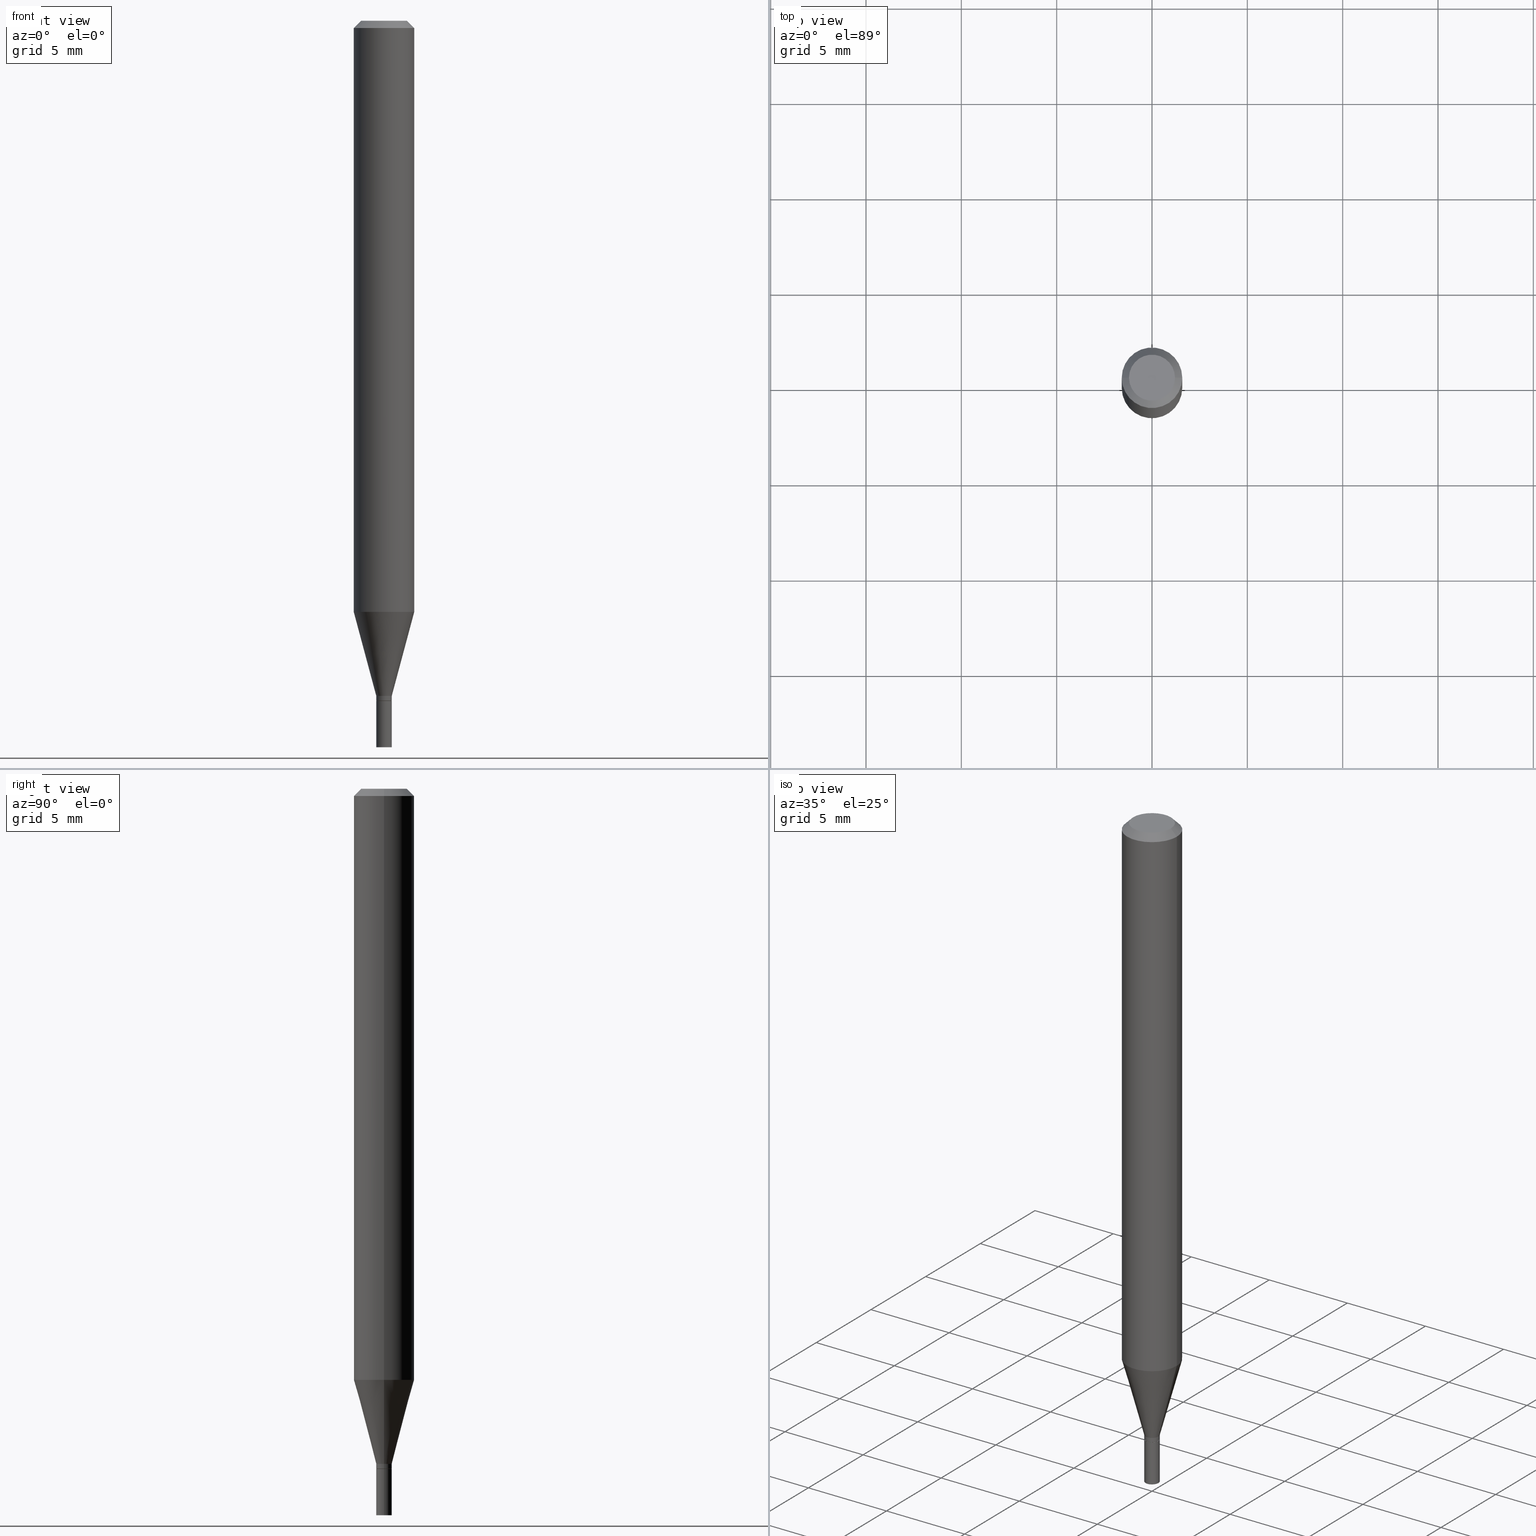
[diagram: canonical four-view strip — front | top / right | iso, engineering-drawing reading convention]
A machine part, canonical four-view strip (front | top / right | iso — engineering-drawing reading convention). The complete STEP part file that produces these views, byte-faithful:
ISO-10303-21;
HEADER;
FILE_DESCRIPTION (( 'STEP AP203' ),
    '1' );
FILE_NAME ('02302.STEP',
    '2024-03-18T20:03:32',
    ( '' ),
    ( '' ),
    'SwSTEP 2.0',
    'SolidWorks 2023',
    '' );
FILE_SCHEMA (( 'CONFIG_CONTROL_DESIGN' ));
ENDSEC;

DATA;
#1 = DIRECTION ( 'NONE',  ( 1.000000000000000000, -6.982962677686244622E-15, 0.000000000000000000 ) ) ;
#2 = CARTESIAN_POINT ( 'NONE',  ( 3.408983515822080869E-29, -4.867124986347346010E-15, -1.394000000000000128 ) ) ;
#3 = CARTESIAN_POINT ( 'NONE',  ( 0.04749999999999999362, -4.035134999187579116E-16, -3.319333953586984624E-17 ) ) ;
#4 = VECTOR ( 'NONE', #246, 39.37007874015748143 ) ;
#5 =( CONVERSION_BASED_UNIT ( 'INCH', #266 ) LENGTH_UNIT ( ) NAMED_UNIT ( #39 ) );
#6 = CARTESIAN_POINT ( 'NONE',  ( -0.01599999999999992401, -4.753438148625730668E-15, -1.394000000000000128 ) ) ;
#7 = ORIENTED_EDGE ( 'NONE', *, *, #208, .T. ) ;
#8 = DIRECTION ( 'NONE',  ( 0.000000000000000000, 0.000000000000000000, 1.000000000000000000 ) ) ;
#9 = CLOSED_SHELL ( 'NONE', ( #113, #121, #93, #413, #345, #426, #212, #209, #13, #332, #146, #288 ) ) ;
#10 = DIRECTION ( 'NONE',  ( 0.2588190451025213501, 1.565188264969621968E-15, 0.9659258262890682012 ) ) ;
#11 = SECURITY_CLASSIFICATION ( '', '', #446 ) ;
#12 = EDGE_LOOP ( 'NONE', ( #232, #431, #231, #374 ) ) ;
#13 = ADVANCED_FACE ( 'NONE', ( #157 ), #260, .F. ) ;
#14 = APPROVAL_STATUS ( 'not_yet_approved' ) ;
#15 = CARTESIAN_POINT ( 'NONE',  ( -0.01599999999999992401, -4.285280493868398751E-15, -1.394000000000000128 ) ) ;
#16 = EDGE_CURVE ( 'NONE', #55, #337, #400, .T. ) ;
#17 = ORIENTED_EDGE ( 'NONE', *, *, #125, .T. ) ;
#18 = APPROVAL_ROLE ( '' ) ;
#19 = FACE_OUTER_BOUND ( 'NONE', #313, .T. ) ;
#20 = ORIENTED_EDGE ( 'NONE', *, *, #326, .T. ) ;
#21 = CARTESIAN_POINT ( 'NONE',  ( 0.000000000000000000, 0.000000000000000000, 0.000000000000000000 ) ) ;
#22 = ORIENTED_EDGE ( 'NONE', *, *, #438, .F. ) ;
#23 = DIRECTION ( 'NONE',  ( -2.445468806185136597E-29, 3.491481338843145583E-15, 1.000000000000000000 ) ) ;
#24 = FACE_OUTER_BOUND ( 'NONE', #28, .T. ) ;
#25 = SHAPE_DEFINITION_REPRESENTATION ( #188, #46 ) ;
#26 = CARTESIAN_POINT ( 'NONE',  ( 3.668203209277705088E-31, -5.237222008264718399E-17, -0.01499999999999999944 ) ) ;
#27 = VECTOR ( 'NONE', #285, 39.37007874015748143 ) ;
#28 = EDGE_LOOP ( 'NONE', ( #456, #31, #394, #386 ) ) ;
#29 = DIRECTION ( 'NONE',  ( 1.000000000000000000, -6.982962677686266711E-15, 4.876176775795935793E-29 ) ) ;
#30 = CC_DESIGN_PERSON_AND_ORGANIZATION_ASSIGNMENT ( #229, #327, ( #365 ) ) ;
#31 = ORIENTED_EDGE ( 'NONE', *, *, #461, .T. ) ;
#32 = CARTESIAN_POINT ( 'NONE',  ( 0.01600000000000000033, -5.348949411107699138E-15, -1.500000000000000222 ) ) ;
#33 = DIRECTION ( 'NONE',  ( -2.445468806185136877E-29, 3.491481338843145188E-15, 1.000000000000000000 ) ) ;
#34 = AXIS2_PLACEMENT_3D ( 'NONE', #135, #312, #238 ) ;
#35 = ORIENTED_EDGE ( 'NONE', *, *, #458, .T. ) ;
#36 = PRODUCT ( '02302', '02302', '', ( #150 ) ) ;
#37 = CC_DESIGN_PERSON_AND_ORGANIZATION_ASSIGNMENT ( #440, #111, ( #36 ) ) ;
#38 = DIRECTION ( 'NONE',  ( -2.445468806185136597E-29, 3.491481338843145583E-15, 1.000000000000000000 ) ) ;
#39 = DIMENSIONAL_EXPONENTS ( 1.000000000000000000, 0.000000000000000000, 0.000000000000000000, 0.000000000000000000, 0.000000000000000000, 0.000000000000000000, 0.000000000000000000 ) ;
#40 = DIRECTION ( 'NONE',  ( -2.445468806185136597E-29, 3.491481338843145583E-15, 1.000000000000000000 ) ) ;
#41 = DIRECTION ( 'NONE',  ( 0.7071067811865642261, -2.468850131082431399E-15, 0.7071067811865309194 ) ) ;
#42 = CONICAL_SURFACE ( 'NONE', #228, 0.01599999999999992401, 0.2617993877991500740 ) ;
#43 = EDGE_CURVE ( 'NONE', #128, #331, #152, .T. ) ;
#44 = COORDINATED_UNIVERSAL_TIME_OFFSET ( 5, 0, .BEHIND. ) ;
#45 = CARTESIAN_POINT ( 'NONE',  ( 0.000000000000000000, 0.000000000000000000, 0.000000000000000000 ) ) ;
#46 = ADVANCED_BREP_SHAPE_REPRESENTATION ( '02302', ( #439, #435, #192 ), #341 ) ;
#47 = COORDINATED_UNIVERSAL_TIME_OFFSET ( 5, 0, .BEHIND. ) ;
#48 = CARTESIAN_POINT ( 'NONE',  ( 3.433438203883931854E-29, -4.902039799735776870E-15, -1.404000000000000137 ) ) ;
#49 = PERSON_AND_ORGANIZATION ( #317, #242 ) ;
#50 = CIRCLE ( 'NONE', #373, 0.01599999999999992401 ) ;
#51 = DIRECTION ( 'NONE',  ( 1.000000000000000000, -6.982962677686267499E-15, 4.876681293081646444E-29 ) ) ;
#52 = APPLICATION_PROTOCOL_DEFINITION ( 'international standard', 'config_control_design', 1994, #138 ) ;
#53 = DIRECTION ( 'NONE',  ( 1.000000000000000000, -6.982962677686265922E-15, 4.876176775795935793E-29 ) ) ;
#54 = ORIENTED_EDGE ( 'NONE', *, *, #179, .F. ) ;
#55 = VERTEX_POINT ( 'NONE', #199 ) ;
#56 = CARTESIAN_POINT ( 'NONE',  ( 3.668203209277705088E-31, -5.237222008264718399E-17, -0.01499999999999999944 ) ) ;
#57 = VECTOR ( 'NONE', #41, 39.37007874015748143 ) ;
#58 = DIRECTION ( 'NONE',  ( 1.000000000000000000, -6.982962677686266711E-15, 0.000000000000000000 ) ) ;
#59 = DIRECTION ( 'NONE',  ( -2.445468806185136597E-29, 3.491481338843145583E-15, 1.000000000000000000 ) ) ;
#60 = ORIENTED_EDGE ( 'NONE', *, *, #277, .T. ) ;
#61 = CARTESIAN_POINT ( 'NONE',  ( 8.117327640808780352E-46, -1.158939255633829398E-31, -3.319333953587241620E-17 ) ) ;
#62 = EDGE_CURVE ( 'NONE', #109, #240, #196, .T. ) ;
#63 = AXIS2_PLACEMENT_3D ( 'NONE', #116, #230, #291 ) ;
#64 = VECTOR ( 'NONE', #100, 39.37007874015748143 ) ;
#65 = APPROVAL_PERSON_ORGANIZATION ( #117, #174, #261 ) ;
#66 = DIRECTION ( 'NONE',  ( 1.000000000000000000, -6.982962677686237523E-15, 0.000000000000000000 ) ) ;
#67 = VERTEX_POINT ( 'NONE', #406 ) ;
#68 = FACE_OUTER_BOUND ( 'NONE', #384, .T. ) ;
#69 = ORIENTED_EDGE ( 'NONE', *, *, #134, .T. ) ;
#70 = CARTESIAN_POINT ( 'NONE',  ( 3.432215469480839613E-29, -4.900294059066355366E-15, -1.403500000000000192 ) ) ;
#71 = AXIS2_PLACEMENT_3D ( 'NONE', #149, #38, #357 ) ;
#72 = DIRECTION ( 'NONE',  ( -2.445468806185136597E-29, 3.491481338843145583E-15, 1.000000000000000000 ) ) ;
#73 = CARTESIAN_POINT ( 'NONE',  ( 0.06250000000000000000, -4.364351673553916694E-16, 3.047610484872459871E-30 ) ) ;
#74 = DATE_TIME_ROLE ( 'creation_date' ) ;
#75 = AXIS2_PLACEMENT_3D ( 'NONE', #190, #262, #51 ) ;
#76 = APPROVAL_ROLE ( '' ) ;
#77 = DIRECTION ( 'NONE',  ( -2.445468806185136597E-29, 3.491481338843145583E-15, 1.000000000000000000 ) ) ;
#78 =( NAMED_UNIT ( * ) SI_UNIT ( $, .STERADIAN. ) SOLID_ANGLE_UNIT ( ) );
#79 = EDGE_CURVE ( 'NONE', #198, #424, #200, .T. ) ;
#80 = CARTESIAN_POINT ( 'NONE',  ( -0.06250000000000000000, -1.712702924671825451E-15, -0.01499999999999999944 ) ) ;
#81 = CC_DESIGN_PERSON_AND_ORGANIZATION_ASSIGNMENT ( #115, #259, ( #11 ) ) ;
#82 = DATE_AND_TIME ( #371, #217 ) ;
#83 = DIRECTION ( 'NONE',  ( -2.445468806185136597E-29, 3.491481338843145583E-15, 1.000000000000000000 ) ) ;
#84 = VECTOR ( 'NONE', #390, 39.37007874015748143 ) ;
#85 = EDGE_LOOP ( 'NONE', ( #298, #108, #416, #22 ) ) ;
#86 = CARTESIAN_POINT ( 'NONE',  ( 3.668203209277704895E-29, -5.237222008264718177E-15, -1.500000000000000222 ) ) ;
#87 = EDGE_CURVE ( 'NONE', #55, #96, #223, .T. ) ;
#88 = APPLICATION_CONTEXT ( 'configuration controlled 3d designs of mechanical parts and assemblies' ) ;
#89 = FACE_OUTER_BOUND ( 'NONE', #85, .T. ) ;
#90 = FACE_OUTER_BOUND ( 'NONE', #401, .T. ) ;
#91 = ORIENTED_EDGE ( 'NONE', *, *, #460, .F. ) ;
#92 = CARTESIAN_POINT ( 'NONE',  ( 0.01599999999999992401, -5.012021461909334750E-15, -1.403500000000000192 ) ) ;
#93 = ADVANCED_FACE ( 'NONE', ( #155 ), #141, .T. ) ;
#94 = ORIENTED_EDGE ( 'NONE', *, *, #79, .T. ) ;
#95 = CARTESIAN_POINT ( 'NONE',  ( 1.117274028430145868E-16, 0.01599999999999509800, -1.404000000000000137 ) ) ;
#96 = VERTEX_POINT ( 'NONE', #80 ) ;
#97 = PLANE ( 'NONE',  #98 ) ;
#98 = AXIS2_PLACEMENT_3D ( 'NONE', #352, #273, #203 ) ;
#99 = ORIENTED_EDGE ( 'NONE', *, *, #378, .T. ) ;
#100 = DIRECTION ( 'NONE',  ( -2.445468806185136877E-29, 3.491481338843145188E-15, 1.000000000000000000 ) ) ;
#101 = ORIENTED_EDGE ( 'NONE', *, *, #216, .T. ) ;
#102 = LINE ( 'NONE', #73, #4 ) ;
#103 = CIRCLE ( 'NONE', #295, 0.06250000000000000000 ) ;
#104 = CC_DESIGN_SECURITY_CLASSIFICATION ( #11, ( #365 ) ) ;
#105 = EDGE_CURVE ( 'NONE', #424, #198, #340, .T. ) ;
#106 = CARTESIAN_POINT ( 'NONE',  ( 3.433438203883931854E-29, -4.902039799735776870E-15, -1.404000000000000137 ) ) ;
#107 = CARTESIAN_POINT ( 'NONE',  ( 0.000000000000000000, 0.000000000000000000, 0.000000000000000000 ) ) ;
#108 = ORIENTED_EDGE ( 'NONE', *, *, #430, .T. ) ;
#109 = VERTEX_POINT ( 'NONE', #15 ) ;
#110 = AXIS2_PLACEMENT_3D ( 'NONE', #137, #23, #417 ) ;
#111 = PERSON_AND_ORGANIZATION_ROLE ( 'design_owner' ) ;
#112 = ORIENTED_EDGE ( 'NONE', *, *, #383, .F. ) ;
#113 = ADVANCED_FACE ( 'NONE', ( #377 ), #372, .T. ) ;
#114 = VERTEX_POINT ( 'NONE', #403 ) ;
#115 = PERSON_AND_ORGANIZATION ( #317, #242 ) ;
#116 = CARTESIAN_POINT ( 'NONE',  ( 3.668203209277705088E-31, -5.237222008264718399E-17, -0.01499999999999999944 ) ) ;
#117 = PERSON_AND_ORGANIZATION ( #317, #242 ) ;
#118 = ORIENTED_EDGE ( 'NONE', *, *, #356, .F. ) ;
#119 = DATE_AND_TIME ( #399, #183 ) ;
#120 = CIRCLE ( 'NONE', #455, 0.06250000000000000000 ) ;
#121 = ADVANCED_FACE ( 'NONE', ( #303 ), #441, .T. ) ;
#122 = AXIS2_PLACEMENT_3D ( 'NONE', #106, #355, #281 ) ;
#123 = LINE ( 'NONE', #338, #271 ) ;
#124 = CIRCLE ( 'NONE', #324, 0.01599999999999992401 ) ;
#125 = EDGE_CURVE ( 'NONE', #205, #293, #123, .T. ) ;
#126 = ORIENTED_EDGE ( 'NONE', *, *, #308, .T. ) ;
#127 = DIRECTION ( 'NONE',  ( 1.000000000000000000, -6.982962677686244622E-15, 0.000000000000000000 ) ) ;
#128 = VERTEX_POINT ( 'NONE', #410 ) ;
#129 = CARTESIAN_POINT ( 'NONE',  ( 3.408983515822080869E-29, -4.867124986347346010E-15, -1.394000000000000128 ) ) ;
#130 = DESIGN_CONTEXT ( 'detailed design', #88, 'design' ) ;
#131 = CYLINDRICAL_SURFACE ( 'NONE', #110, 0.06250000000000000000 ) ;
#132 = CONICAL_SURFACE ( 'NONE', #264, 0.01550000000000000162, 0.7853981633974718157 ) ;
#133 = CIRCLE ( 'NONE', #287, 0.06250000000000000000 ) ;
#134 = EDGE_CURVE ( 'NONE', #205, #114, #234, .T. ) ;
#135 = CARTESIAN_POINT ( 'NONE',  ( 3.668203209277705088E-31, -5.237222008264718399E-17, -0.01499999999999999944 ) ) ;
#136 = ORIENTED_EDGE ( 'NONE', *, *, #461, .F. ) ;
#137 = CARTESIAN_POINT ( 'NONE',  ( 0.000000000000000000, 0.000000000000000000, 0.000000000000000000 ) ) ;
#138 = APPLICATION_CONTEXT ( 'configuration controlled 3d designs of mechanical parts and assemblies' ) ;
#139 = ORIENTED_EDGE ( 'NONE', *, *, #43, .T. ) ;
#140 = DIRECTION ( 'NONE',  ( 1.000000000000000000, -6.982962677686271444E-15, 0.000000000000000000 ) ) ;
#141 = CONICAL_SURFACE ( 'NONE', #63, 0.06250000000000000000, 0.7853981633974495002 ) ;
#142 = CIRCLE ( 'NONE', #148, 0.01600000000000000033 ) ;
#143 = ORIENTED_EDGE ( 'NONE', *, *, #134, .F. ) ;
#144 = FACE_OUTER_BOUND ( 'NONE', #404, .T. ) ;
#145 = CYLINDRICAL_SURFACE ( 'NONE', #167, 0.06250000000000000000 ) ;
#146 = ADVANCED_FACE ( 'NONE', ( #19 ), #132, .T. ) ;
#147 = LINE ( 'NONE', #397, #27 ) ;
#148 = AXIS2_PLACEMENT_3D ( 'NONE', #314, #322, #140 ) ;
#149 = CARTESIAN_POINT ( 'NONE',  ( 3.408983515822080869E-29, -4.867124986347346010E-15, -1.394000000000000128 ) ) ;
#150 = MECHANICAL_CONTEXT ( 'NONE', #138, 'mechanical' ) ;
#151 = ORIENTED_EDGE ( 'NONE', *, *, #43, .F. ) ;
#152 = LINE ( 'NONE', #449, #191 ) ;
#153 = DIRECTION ( 'NONE',  ( 1.000000000000000000, -6.982962677686271444E-15, 0.000000000000000000 ) ) ;
#154 = APPLICATION_PROTOCOL_DEFINITION ( 'international standard', 'config_control_design', 1994, #88 ) ;
#155 = FACE_OUTER_BOUND ( 'NONE', #333, .T. ) ;
#156 = CALENDAR_DATE ( 2024, 18, 3 ) ;
#157 = FACE_OUTER_BOUND ( 'NONE', #354, .T. ) ;
#158 = ADVANCED_FACE ( 'NONE', ( #241 ), #306, .F. ) ;
#159 = AXIS2_PLACEMENT_3D ( 'NONE', #21, #387, #29 ) ;
#160 = FACE_OUTER_BOUND ( 'NONE', #429, .T. ) ;
#161 = ORIENTED_EDGE ( 'NONE', *, *, #321, .T. ) ;
#162 = CYLINDRICAL_SURFACE ( 'NONE', #159, 0.01600000000000000033 ) ;
#163 = CYLINDRICAL_SURFACE ( 'NONE', #265, 0.01599999999999992401 ) ;
#164 = CC_DESIGN_PERSON_AND_ORGANIZATION_ASSIGNMENT ( #369, #364, ( #247 ) ) ;
#165 = ORIENTED_EDGE ( 'NONE', *, *, #179, .T. ) ;
#166 = DIRECTION ( 'NONE',  ( -2.445468806185136597E-29, 3.491481338843145583E-15, 1.000000000000000000 ) ) ;
#167 = AXIS2_PLACEMENT_3D ( 'NONE', #284, #72, #362 ) ;
#168 = VERTEX_POINT ( 'NONE', #339 ) ;
#169 = DIRECTION ( 'NONE',  ( 2.438088387897960049E-29, -3.491481338843145188E-15, -1.000000000000000000 ) ) ;
#170 = EDGE_CURVE ( 'NONE', #240, #96, #459, .T. ) ;
#171 = ORIENTED_EDGE ( 'NONE', *, *, #422, .T. ) ;
#172 = LINE ( 'NONE', #213, #388 ) ;
#173 = EDGE_CURVE ( 'NONE', #128, #109, #50, .T. ) ;
#174 = APPROVAL ( #195, 'UNSPECIFIED' ) ;
#175 = VERTEX_POINT ( 'NONE', #275 ) ;
#176 = LINE ( 'NONE', #466, #57 ) ;
#177 = AXIS2_PLACEMENT_3D ( 'NONE', #344, #269, #411 ) ;
#178 = DIRECTION ( 'NONE',  ( 1.000000000000000000, -6.982962677686262766E-15, 0.000000000000000000 ) ) ;
#179 = EDGE_CURVE ( 'NONE', #337, #55, #350, .T. ) ;
#180 = LINE ( 'NONE', #363, #282 ) ;
#181 = APPROVAL ( #402, 'UNSPECIFIED' ) ;
#182 = FACE_OUTER_BOUND ( 'NONE', #214, .T. ) ;
#183 = LOCAL_TIME ( 16, 3, 32.00000000000000000, #444 ) ;
#184 = LOCAL_TIME ( 16, 3, 32.00000000000000000, #407 ) ;
#185 = CALENDAR_DATE ( 2024, 18, 3 ) ;
#186 = ORIENTED_EDGE ( 'NONE', *, *, #430, .F. ) ;
#187 = ORIENTED_EDGE ( 'NONE', *, *, #79, .F. ) ;
#188 = PRODUCT_DEFINITION_SHAPE ( 'NONE', 'NONE',  #247 ) ;
#189 = PERSON_AND_ORGANIZATION_ROLE ( 'creator' ) ;
#190 = CARTESIAN_POINT ( 'NONE',  ( 8.117327640808780352E-46, -1.158939255633829398E-31, -3.319333953587241620E-17 ) ) ;
#191 = VECTOR ( 'NONE', #10, 39.37007874015747433 ) ;
#192 = AXIS2_PLACEMENT_3D ( 'NONE', #107, #8, #436 ) ;
#193 = COORDINATED_UNIVERSAL_TIME_OFFSET ( 5, 0, .BEHIND. ) ;
#194 = DIRECTION ( 'NONE',  ( 1.000000000000000000, -6.982962677686271444E-15, 0.000000000000000000 ) ) ;
#195 = APPROVAL_STATUS ( 'not_yet_approved' ) ;
#196 = LINE ( 'NONE', #6, #263 ) ;
#197 = ADVANCED_FACE ( 'NONE', ( #160 ), #162, .T. ) ;
#198 = VERTEX_POINT ( 'NONE', #270 ) ;
#199 = CARTESIAN_POINT ( 'NONE',  ( -0.04749999999999999362, 3.578768372314210506E-16, -3.319333953587482593E-17 ) ) ;
#200 = CIRCLE ( 'NONE', #280, 0.01600000000000000033 ) ;
#201 = APPROVAL_PERSON_ORGANIZATION ( #49, #181, #76 ) ;
#202 = DIRECTION ( 'NONE',  ( -2.445468806185136597E-29, 3.491481338843145583E-15, 1.000000000000000000 ) ) ;
#203 = DIRECTION ( 'NONE',  ( 1.000000000000000000, -6.982962677686265922E-15, 4.876176775795935793E-29 ) ) ;
#204 = DIRECTION ( 'NONE',  ( 1.000000000000000000, -6.982962677686267499E-15, 4.876681293081646444E-29 ) ) ;
#205 = VERTEX_POINT ( 'NONE', #305 ) ;
#206 = DIRECTION ( 'NONE',  ( -2.445468806185136597E-29, 3.491481338843145583E-15, 1.000000000000000000 ) ) ;
#207 = CLOSED_SHELL ( 'NONE', ( #276, #226, #197, #158 ) ) ;
#208 = EDGE_CURVE ( 'NONE', #175, #96, #120, .T. ) ;
#209 = ADVANCED_FACE ( 'NONE', ( #419 ), #396, .T. ) ;
#210 = ORIENTED_EDGE ( 'NONE', *, *, #105, .F. ) ;
#211 = FACE_OUTER_BOUND ( 'NONE', #12, .T. ) ;
#212 = ADVANCED_FACE ( 'NONE', ( #90 ), #131, .T. ) ;
#213 = CARTESIAN_POINT ( 'NONE',  ( -0.01600000000000000033, 1.136868377216160321E-16, -7.870296144407849335E-31 ) ) ;
#214 = EDGE_LOOP ( 'NONE', ( #112, #143 ) ) ;
#215 = LINE ( 'NONE', #462, #361 ) ;
#216 = EDGE_CURVE ( 'NONE', #109, #128, #124, .T. ) ;
#217 = LOCAL_TIME ( 16, 3, 32.00000000000000000, #47 ) ;
#218 = DIRECTION ( 'NONE',  ( 1.000000000000000000, -6.982962677686237523E-15, 0.000000000000000000 ) ) ;
#219 = CARTESIAN_POINT ( 'NONE',  ( 2.984595972587221379E-29, -4.261212048961128661E-15, -1.220459637448047641 ) ) ;
#220 = APPROVAL_DATE_TIME ( #82, #181 ) ;
#221 = ORIENTED_EDGE ( 'NONE', *, *, #321, .F. ) ;
#222 = DIRECTION ( 'NONE',  ( 1.000000000000000000, -6.982962677686237523E-15, 0.000000000000000000 ) ) ;
#223 = LINE ( 'NONE', #253, #315 ) ;
#224 = DATE_AND_TIME ( #185, #304 ) ;
#225 = DIRECTION ( 'NONE',  ( -2.445468806185136597E-29, 3.491481338843145583E-15, 1.000000000000000000 ) ) ;
#226 = ADVANCED_FACE ( 'NONE', ( #452 ), #97, .F. ) ;
#227 = ORIENTED_EDGE ( 'NONE', *, *, #173, .F. ) ;
#228 = AXIS2_PLACEMENT_3D ( 'NONE', #2, #289, #428 ) ;
#229 = PERSON_AND_ORGANIZATION ( #317, #242 ) ;
#230 = DIRECTION ( 'NONE',  ( 2.445468806185136597E-29, -3.491481338843145583E-15, -1.000000000000000000 ) ) ;
#231 = ORIENTED_EDGE ( 'NONE', *, *, #208, .F. ) ;
#232 = ORIENTED_EDGE ( 'NONE', *, *, #460, .T. ) ;
#233 = CYLINDRICAL_SURFACE ( 'NONE', #443, 0.01600000000000000033 ) ;
#234 = CIRCLE ( 'NONE', #294, 0.01550000000000000162 ) ;
#235 = CIRCLE ( 'NONE', #177, 0.01599999999999992401 ) ;
#236 = DIRECTION ( 'NONE',  ( 1.000000000000000000, -6.982962677686244622E-15, 0.000000000000000000 ) ) ;
#237 = ORIENTED_EDGE ( 'NONE', *, *, #383, .T. ) ;
#238 = DIRECTION ( 'NONE',  ( -1.000000000000000000, 6.982962677686266711E-15, 0.000000000000000000 ) ) ;
#239 = DIRECTION ( 'NONE',  ( -1.000000000000000000, 6.982962677686265922E-15, -4.876176775795935793E-29 ) ) ;
#240 = VERTEX_POINT ( 'NONE', #343 ) ;
#241 = FACE_OUTER_BOUND ( 'NONE', #420, .T. ) ;
#242 = ORGANIZATION ( 'UNSPECIFIED', 'UNSPECIFIED', '' ) ;
#243 = CC_DESIGN_DATE_AND_TIME_ASSIGNMENT ( #376, #300, ( #11 ) ) ;
#244 = CARTESIAN_POINT ( 'NONE',  ( -0.01599999999999992401, 1.136868377216154898E-16, -7.870296144407811675E-31 ) ) ;
#245 = ORIENTED_EDGE ( 'NONE', *, *, #251, .F. ) ;
#246 = DIRECTION ( 'NONE',  ( -2.445468806185136877E-29, 3.491481338843145188E-15, 1.000000000000000000 ) ) ;
#247 = PRODUCT_DEFINITION ( 'UNKNOWN', '', #365, #130 ) ;
#248 = CARTESIAN_POINT ( 'NONE',  ( 3.433438203883931854E-29, -4.902039799735776870E-15, -1.404000000000000137 ) ) ;
#249 = DIRECTION ( 'NONE',  ( 1.000000000000000000, -6.982962677686262766E-15, 0.000000000000000000 ) ) ;
#250 = DIRECTION ( 'NONE',  ( -2.445468806185136597E-29, 3.491481338843145583E-15, 1.000000000000000000 ) ) ;
#251 = EDGE_CURVE ( 'NONE', #274, #293, #235, .T. ) ;
#252 = PERSON_AND_ORGANIZATION ( #317, #242 ) ;
#253 = CARTESIAN_POINT ( 'NONE',  ( -0.06250000000000000000, 3.840629472727444916E-16, -0.01499999999999999944 ) ) ;
#254 = PRODUCT_RELATED_PRODUCT_CATEGORY ( 'detail', '', ( #36 ) ) ;
#255 = AXIS2_PLACEMENT_3D ( 'NONE', #45, #225, #53 ) ;
#256 = LOCAL_TIME ( 16, 3, 32.00000000000000000, #193 ) ;
#257 = APPROVAL_DATE_TIME ( #119, #342 ) ;
#258 = CARTESIAN_POINT ( 'NONE',  ( 3.316907271900976096E-16, 0.04749999999999999362, -1.824420333629856199E-16 ) ) ;
#259 = PERSON_AND_ORGANIZATION_ROLE ( 'classification_officer' ) ;
#260 = PLANE ( 'NONE',  #359 ) ;
#261 = APPROVAL_ROLE ( '' ) ;
#262 = DIRECTION ( 'NONE',  ( -2.445468806185136597E-29, 3.491481338843145583E-15, 1.000000000000000000 ) ) ;
#263 = VECTOR ( 'NONE', #445, 39.37007874015747433 ) ;
#264 = AXIS2_PLACEMENT_3D ( 'NONE', #366, #385, #66 ) ;
#265 = AXIS2_PLACEMENT_3D ( 'NONE', #453, #166, #310 ) ;
#266 = LENGTH_MEASURE_WITH_UNIT ( LENGTH_MEASURE( 0.02539999999999999897 ), #432 );
#267 = DIRECTION ( 'NONE',  ( 2.438088387897960049E-29, -3.491481338843145188E-15, -1.000000000000000000 ) ) ;
#268 = EDGE_LOOP ( 'NONE', ( #367, #99, #227, #330 ) ) ;
#269 = DIRECTION ( 'NONE',  ( -2.445468806185136597E-29, 3.491481338843145583E-15, 1.000000000000000000 ) ) ;
#270 = CARTESIAN_POINT ( 'NONE',  ( -0.01600000000000000033, -4.955944066278631393E-15, -1.500000000000000222 ) ) ;
#271 = VECTOR ( 'NONE', #301, 39.37007874015748143 ) ;
#272 = CIRCLE ( 'NONE', #423, 0.06250000000000000000 ) ;
#273 = DIRECTION ( 'NONE',  ( -2.438088387897960049E-29, 3.491481338843145188E-15, 1.000000000000000000 ) ) ;
#274 = VERTEX_POINT ( 'NONE', #92 ) ;
#275 = CARTESIAN_POINT ( 'NONE',  ( 0.06250000000000000000, -4.888073874380388472E-16, -0.01499999999999999944 ) ) ;
#276 = ADVANCED_FACE ( 'NONE', ( #89 ), #233, .T. ) ;
#277 = EDGE_CURVE ( 'NONE', #96, #175, #272, .T. ) ;
#278 = DIRECTION ( 'NONE',  ( -2.445468806185136597E-29, 3.491481338843145583E-15, 1.000000000000000000 ) ) ;
#279 = ORIENTED_EDGE ( 'NONE', *, *, #62, .T. ) ;
#280 = AXIS2_PLACEMENT_3D ( 'NONE', #86, #370, #153 ) ;
#281 = DIRECTION ( 'NONE',  ( 1.000000000000000000, -6.982962677686265922E-15, 4.876176775795935793E-29 ) ) ;
#282 = VECTOR ( 'NONE', #320, 39.37007874015748143 ) ;
#283 = ORIENTED_EDGE ( 'NONE', *, *, #173, .T. ) ;
#284 = CARTESIAN_POINT ( 'NONE',  ( 0.000000000000000000, 0.000000000000000000, 0.000000000000000000 ) ) ;
#285 = DIRECTION ( 'NONE',  ( -2.445468806185136877E-29, 3.491481338843145188E-15, 1.000000000000000000 ) ) ;
#286 = CARTESIAN_POINT ( 'NONE',  ( 2.984595972587221379E-29, -4.261212048961128661E-15, -1.220459637448047641 ) ) ;
#287 = AXIS2_PLACEMENT_3D ( 'NONE', #219, #393, #178 ) ;
#288 = ADVANCED_FACE ( 'NONE', ( #24 ), #163, .T. ) ;
#289 = DIRECTION ( 'NONE',  ( -2.445468806185136597E-29, 3.491481338843145583E-15, 1.000000000000000000 ) ) ;
#290 = PERSON_AND_ORGANIZATION ( #317, #242 ) ;
#291 = DIRECTION ( 'NONE',  ( -1.000000000000000000, 6.982962677686266711E-15, 0.000000000000000000 ) ) ;
#292 =( NAMED_UNIT ( * ) PLANE_ANGLE_UNIT ( ) SI_UNIT ( $, .RADIAN. ) );
#293 = VERTEX_POINT ( 'NONE', #457 ) ;
#294 = AXIS2_PLACEMENT_3D ( 'NONE', #48, #447, #222 ) ;
#295 = AXIS2_PLACEMENT_3D ( 'NONE', #286, #250, #249 ) ;
#296 = EDGE_CURVE ( 'NONE', #274, #128, #215, .T. ) ;
#297 = DIRECTION ( 'NONE',  ( -1.000000000000000000, 6.982962677686265922E-15, -4.876176775795935793E-29 ) ) ;
#298 = ORIENTED_EDGE ( 'NONE', *, *, #105, .T. ) ;
#299 = EDGE_LOOP ( 'NONE', ( #210, #187 ) ) ;
#300 = DATE_TIME_ROLE ( 'classification_date' ) ;
#301 = DIRECTION ( 'NONE',  ( -0.7071067811865642261, 7.493145998870414114E-15, 0.7071067811865309194 ) ) ;
#302 = DATE_AND_TIME ( #156, #184 ) ;
#303 = FACE_OUTER_BOUND ( 'NONE', #311, .T. ) ;
#304 = LOCAL_TIME ( 16, 3, 32.00000000000000000, #44 ) ;
#305 = CARTESIAN_POINT ( 'NONE',  ( -0.01550000000000000162, -4.789256448518849648E-15, -1.404000000000000137 ) ) ;
#306 = PLANE ( 'NONE',  #334 ) ;
#307 = DIRECTION ( 'NONE',  ( -2.445468806185136597E-29, 3.491481338843145583E-15, 1.000000000000000000 ) ) ;
#308 = EDGE_CURVE ( 'NONE', #67, #168, #309, .T. ) ;
#309 = CIRCLE ( 'NONE', #375, 0.01600000000000000033 ) ;
#310 = DIRECTION ( 'NONE',  ( 1.000000000000000000, -6.982962677686265922E-15, 4.876176775795935793E-29 ) ) ;
#311 = EDGE_LOOP ( 'NONE', ( #237, #17, #245, #221 ) ) ;
#312 = DIRECTION ( 'NONE',  ( 2.445468806185136597E-29, -3.491481338843145583E-15, -1.000000000000000000 ) ) ;
#313 = EDGE_LOOP ( 'NONE', ( #329, #69, #161, #136 ) ) ;
#314 = CARTESIAN_POINT ( 'NONE',  ( 3.433438203883931854E-29, -4.902039799735776870E-15, -1.404000000000000137 ) ) ;
#315 = VECTOR ( 'NONE', #442, 39.37007874015748143 ) ;
#316 = PLANE ( 'NONE',  #122 ) ;
#317 = PERSON ( 'UNSPECIFIED', 'UNSPECIFIED', 'UNSPECIFIED', ('UNSPECIFIED'), ('UNSPECIFIED'), ('UNSPECIFIED') ) ;
#318 = ORIENTED_EDGE ( 'NONE', *, *, #87, .F. ) ;
#319 = DIRECTION ( 'NONE',  ( 1.000000000000000000, -6.982962677686271444E-15, 0.000000000000000000 ) ) ;
#320 = DIRECTION ( 'NONE',  ( 0.7071067811865483499, -7.319954787623257623E-15, -0.7071067811865466846 ) ) ;
#321 = EDGE_CURVE ( 'NONE', #114, #274, #176, .T. ) ;
#322 = DIRECTION ( 'NONE',  ( -2.445468806185136597E-29, 3.491481338843145583E-15, 1.000000000000000000 ) ) ;
#323 = AXIS2_PLACEMENT_3D ( 'NONE', #61, #307, #204 ) ;
#324 = AXIS2_PLACEMENT_3D ( 'NONE', #421, #206, #236 ) ;
#325 = AXIS2_PLACEMENT_3D ( 'NONE', #70, #360, #1 ) ;
#326 = EDGE_CURVE ( 'NONE', #168, #67, #142, .T. ) ;
#327 = PERSON_AND_ORGANIZATION_ROLE ( 'design_supplier' ) ;
#328 = ORIENTED_EDGE ( 'NONE', *, *, #308, .F. ) ;
#329 = ORIENTED_EDGE ( 'NONE', *, *, #125, .F. ) ;
#330 = ORIENTED_EDGE ( 'NONE', *, *, #296, .F. ) ;
#331 = VERTEX_POINT ( 'NONE', #395 ) ;
#332 = ADVANCED_FACE ( 'NONE', ( #182 ), #316, .F. ) ;
#333 = EDGE_LOOP ( 'NONE', ( #54, #171, #7, #318 ) ) ;
#334 = AXIS2_PLACEMENT_3D ( 'NONE', #95, #169, #239 ) ;
#335 = CIRCLE ( 'NONE', #409, 0.01550000000000000162 ) ;
#336 = CALENDAR_DATE ( 2024, 18, 3 ) ;
#337 = VERTEX_POINT ( 'NONE', #3 ) ;
#338 = CARTESIAN_POINT ( 'NONE',  ( -0.01550000000000000162, -4.791905675692960849E-15, -1.404000000000000137 ) ) ;
#339 = CARTESIAN_POINT ( 'NONE',  ( 0.01600000000000000033, -5.013767202578757042E-15, -1.404000000000000137 ) ) ;
#340 = CIRCLE ( 'NONE', #463, 0.01600000000000000033 ) ;
#341 =( GEOMETRIC_REPRESENTATION_CONTEXT ( 3 ) GLOBAL_UNCERTAINTY_ASSIGNED_CONTEXT ( ( #353 ) ) GLOBAL_UNIT_ASSIGNED_CONTEXT ( ( #5, #292, #78 ) ) REPRESENTATION_CONTEXT ( 'NONE', 'WORKASPACE' ) );
#342 = APPROVAL ( #14, 'UNSPECIFIED' ) ;
#343 = CARTESIAN_POINT ( 'NONE',  ( -0.06250000000000000000, -3.817122839111066834E-15, -1.220459637448047641 ) ) ;
#344 = CARTESIAN_POINT ( 'NONE',  ( 3.432215469480839613E-29, -4.900294059066355366E-15, -1.403500000000000192 ) ) ;
#345 = ADVANCED_FACE ( 'NONE', ( #144 ), #433, .T. ) ;
#346 = ORIENTED_EDGE ( 'NONE', *, *, #277, .F. ) ;
#347 = ORIENTED_EDGE ( 'NONE', *, *, #438, .T. ) ;
#348 = DIRECTION ( 'NONE',  ( -2.445468806185136597E-29, 3.491481338843145583E-15, 1.000000000000000000 ) ) ;
#349 = CC_DESIGN_DATE_AND_TIME_ASSIGNMENT ( #224, #74, ( #247 ) ) ;
#350 = CIRCLE ( 'NONE', #323, 0.04749999999999999362 ) ;
#351 = APPROVAL_PERSON_ORGANIZATION ( #252, #342, #18 ) ;
#352 = CARTESIAN_POINT ( 'NONE',  ( 3.576687321579069994E-29, -5.368277968210015545E-15, -1.500000000000000222 ) ) ;
#353 = UNCERTAINTY_MEASURE_WITH_UNIT (LENGTH_MEASURE( 1.000000000000000082E-05 ), #5, 'distance_accuracy_value', 'NONE');
#354 = EDGE_LOOP ( 'NONE', ( #389, #165 ) ) ;
#355 = DIRECTION ( 'NONE',  ( -2.438088387897960049E-29, 3.491481338843145188E-15, 1.000000000000000000 ) ) ;
#356 = EDGE_CURVE ( 'NONE', #240, #331, #103, .T. ) ;
#357 = DIRECTION ( 'NONE',  ( 1.000000000000000000, -6.982962677686244622E-15, 0.000000000000000000 ) ) ;
#358 = ORIENTED_EDGE ( 'NONE', *, *, #422, .F. ) ;
#359 = AXIS2_PLACEMENT_3D ( 'NONE', #258, #267, #297 ) ;
#360 = DIRECTION ( 'NONE',  ( -2.445468806185136597E-29, 3.491481338843145583E-15, 1.000000000000000000 ) ) ;
#361 = VECTOR ( 'NONE', #434, 39.37007874015748143 ) ;
#362 = DIRECTION ( 'NONE',  ( 1.000000000000000000, -6.982962677686266711E-15, 4.876176775795935793E-29 ) ) ;
#363 = CARTESIAN_POINT ( 'NONE',  ( 0.06250000000000000000, -4.811533449433679005E-16, -0.01499999999999999944 ) ) ;
#364 = PERSON_AND_ORGANIZATION_ROLE ( 'creator' ) ;
#365 = PRODUCT_DEFINITION_FORMATION_WITH_SPECIFIED_SOURCE ( 'ANY', '', #36, .NOT_KNOWN. ) ;
#366 = CARTESIAN_POINT ( 'NONE',  ( 3.433438203883931854E-29, -4.902039799735776870E-15, -1.404000000000000137 ) ) ;
#367 = ORIENTED_EDGE ( 'NONE', *, *, #251, .T. ) ;
#368 = EDGE_LOOP ( 'NONE', ( #358, #427, #391, #60 ) ) ;
#369 = PERSON_AND_ORGANIZATION ( #317, #242 ) ;
#370 = DIRECTION ( 'NONE',  ( -2.445468806185136597E-29, 3.491481338843145583E-15, 1.000000000000000000 ) ) ;
#371 = CALENDAR_DATE ( 2024, 18, 3 ) ;
#372 = CYLINDRICAL_SURFACE ( 'NONE', #255, 0.01599999999999992401 ) ;
#373 = AXIS2_PLACEMENT_3D ( 'NONE', #129, #59, #127 ) ;
#374 = ORIENTED_EDGE ( 'NONE', *, *, #458, .F. ) ;
#375 = AXIS2_PLACEMENT_3D ( 'NONE', #248, #398, #319 ) ;
#376 = DATE_AND_TIME ( #336, #256 ) ;
#377 = FACE_OUTER_BOUND ( 'NONE', #268, .T. ) ;
#378 = EDGE_CURVE ( 'NONE', #293, #109, #425, .T. ) ;
#379 = CARTESIAN_POINT ( 'NONE',  ( 3.433438203883931854E-29, -4.902039799735776870E-15, -1.404000000000000137 ) ) ;
#380 = CC_DESIGN_PERSON_AND_ORGANIZATION_ASSIGNMENT ( #290, #189, ( #365 ) ) ;
#381 = CARTESIAN_POINT ( 'NONE',  ( 0.000000000000000000, 0.000000000000000000, 0.000000000000000000 ) ) ;
#382 = DIRECTION ( 'NONE',  ( 1.000000000000000000, -6.982962677686266711E-15, 4.876176775795935793E-29 ) ) ;
#383 = EDGE_CURVE ( 'NONE', #114, #205, #335, .T. ) ;
#384 = EDGE_LOOP ( 'NONE', ( #418, #101, #139, #118 ) ) ;
#385 = DIRECTION ( 'NONE',  ( -2.445468806185136597E-29, 3.491481338843145583E-15, 1.000000000000000000 ) ) ;
#386 = ORIENTED_EDGE ( 'NONE', *, *, #216, .F. ) ;
#387 = DIRECTION ( 'NONE',  ( -2.445468806185136597E-29, 3.491481338843145583E-15, 1.000000000000000000 ) ) ;
#388 = VECTOR ( 'NONE', #33, 39.37007874015748143 ) ;
#389 = ORIENTED_EDGE ( 'NONE', *, *, #16, .T. ) ;
#390 = DIRECTION ( 'NONE',  ( -2.445468806185136877E-29, 3.491481338843145188E-15, 1.000000000000000000 ) ) ;
#391 = ORIENTED_EDGE ( 'NONE', *, *, #87, .T. ) ;
#392 = CARTESIAN_POINT ( 'NONE',  ( 3.433438203883931854E-29, -4.902039799735776870E-15, -1.404000000000000137 ) ) ;
#393 = DIRECTION ( 'NONE',  ( -2.445468806185136597E-29, 3.491481338843145583E-15, 1.000000000000000000 ) ) ;
#394 = ORIENTED_EDGE ( 'NONE', *, *, #296, .T. ) ;
#395 = CARTESIAN_POINT ( 'NONE',  ( 0.06250000000000000000, -4.697647216316520331E-15, -1.220459637448047641 ) ) ;
#396 = CONICAL_SURFACE ( 'NONE', #34, 0.06250000000000000000, 0.7853981633974495002 ) ;
#397 = CARTESIAN_POINT ( 'NONE',  ( 0.01600000000000000033, -1.117274028429802713E-16, 7.801882841273497199E-31 ) ) ;
#398 = DIRECTION ( 'NONE',  ( -2.445468806185136597E-29, 3.491481338843145583E-15, 1.000000000000000000 ) ) ;
#399 = CALENDAR_DATE ( 2024, 18, 3 ) ;
#400 = CIRCLE ( 'NONE', #75, 0.04749999999999999362 ) ;
#401 = EDGE_LOOP ( 'NONE', ( #465, #405, #35, #346 ) ) ;
#402 = APPROVAL_STATUS ( 'not_yet_approved' ) ;
#403 = CARTESIAN_POINT ( 'NONE',  ( 0.01550000000000000162, -5.010275721239913246E-15, -1.404000000000000137 ) ) ;
#404 = EDGE_LOOP ( 'NONE', ( #283, #279, #91, #151 ) ) ;
#405 = ORIENTED_EDGE ( 'NONE', *, *, #356, .T. ) ;
#406 = CARTESIAN_POINT ( 'NONE',  ( -0.01600000000000000033, -4.955944066278631393E-15, -1.404000000000000137 ) ) ;
#407 = COORDINATED_UNIVERSAL_TIME_OFFSET ( 5, 0, .BEHIND. ) ;
#408 = CARTESIAN_POINT ( 'NONE',  ( 3.668203209277704895E-29, -5.237222008264718177E-15, -1.500000000000000222 ) ) ;
#409 = AXIS2_PLACEMENT_3D ( 'NONE', #392, #40, #218 ) ;
#410 = CARTESIAN_POINT ( 'NONE',  ( 0.01599999999999992401, -4.978852389190325393E-15, -1.394000000000000128 ) ) ;
#411 = DIRECTION ( 'NONE',  ( 1.000000000000000000, -6.982962677686244622E-15, 0.000000000000000000 ) ) ;
#412 = DIRECTION ( 'NONE',  ( 1.000000000000000000, -6.982962677686266711E-15, 0.000000000000000000 ) ) ;
#413 = ADVANCED_FACE ( 'NONE', ( #211 ), #145, .T. ) ;
#414 = CIRCLE ( 'NONE', #325, 0.01599999999999992401 ) ;
#415 = CC_DESIGN_APPROVAL ( #174, ( #11 ) ) ;
#416 = ORIENTED_EDGE ( 'NONE', *, *, #326, .F. ) ;
#417 = DIRECTION ( 'NONE',  ( 1.000000000000000000, -6.982962677686266711E-15, 4.876176775795935793E-29 ) ) ;
#418 = ORIENTED_EDGE ( 'NONE', *, *, #62, .F. ) ;
#419 = FACE_OUTER_BOUND ( 'NONE', #368, .T. ) ;
#420 = EDGE_LOOP ( 'NONE', ( #20, #126 ) ) ;
#421 = CARTESIAN_POINT ( 'NONE',  ( 3.408983515822080869E-29, -4.867124986347346010E-15, -1.394000000000000128 ) ) ;
#422 = EDGE_CURVE ( 'NONE', #337, #175, #180, .T. ) ;
#423 = AXIS2_PLACEMENT_3D ( 'NONE', #56, #202, #58 ) ;
#424 = VERTEX_POINT ( 'NONE', #32 ) ;
#425 = LINE ( 'NONE', #244, #64 ) ;
#426 = ADVANCED_FACE ( 'NONE', ( #68 ), #42, .T. ) ;
#427 = ORIENTED_EDGE ( 'NONE', *, *, #16, .F. ) ;
#428 = DIRECTION ( 'NONE',  ( 1.000000000000000000, -6.982962677686244622E-15, 0.000000000000000000 ) ) ;
#429 = EDGE_LOOP ( 'NONE', ( #186, #94, #347, #328 ) ) ;
#430 = EDGE_CURVE ( 'NONE', #198, #67, #172, .T. ) ;
#431 = ORIENTED_EDGE ( 'NONE', *, *, #170, .T. ) ;
#432 =( LENGTH_UNIT ( ) NAMED_UNIT ( * ) SI_UNIT ( $, .METRE. ) );
#433 = CONICAL_SURFACE ( 'NONE', #71, 0.01599999999999992401, 0.2617993877991500740 ) ;
#434 = DIRECTION ( 'NONE',  ( -2.445468806185136877E-29, 3.491481338843145188E-15, 1.000000000000000000 ) ) ;
#435 = MANIFOLD_SOLID_BREP ( 'Body-Move/Copy2[2]', #9 ) ;
#436 = DIRECTION ( 'NONE',  ( 1.000000000000000000, 0.000000000000000000, 0.000000000000000000 ) ) ;
#437 = DIRECTION ( 'NONE',  ( 1.000000000000000000, -6.982962677686237523E-15, 0.000000000000000000 ) ) ;
#438 = EDGE_CURVE ( 'NONE', #424, #168, #147, .T. ) ;
#439 = MANIFOLD_SOLID_BREP ( 'Body-Move/Copy2[1]', #207 ) ;
#440 = PERSON_AND_ORGANIZATION ( #317, #242 ) ;
#441 = CONICAL_SURFACE ( 'NONE', #454, 0.01550000000000000162, 0.7853981633974718157 ) ;
#442 = DIRECTION ( 'NONE',  ( -0.7071067811865483499, 2.468850131082265738E-15, -0.7071067811865466846 ) ) ;
#443 = AXIS2_PLACEMENT_3D ( 'NONE', #381, #348, #382 ) ;
#444 = COORDINATED_UNIVERSAL_TIME_OFFSET ( 5, 0, .BEHIND. ) ;
#445 = DIRECTION ( 'NONE',  ( -0.2588190451025213501, 5.211531920934551042E-15, 0.9659258262890682012 ) ) ;
#446 = SECURITY_CLASSIFICATION_LEVEL ( 'unclassified' ) ;
#447 = DIRECTION ( 'NONE',  ( -2.445468806185136597E-29, 3.491481338843145583E-15, 1.000000000000000000 ) ) ;
#448 = APPROVAL_DATE_TIME ( #302, #174 ) ;
#449 = CARTESIAN_POINT ( 'NONE',  ( 0.01599999999999992401, -4.978852389190325393E-15, -1.394000000000000128 ) ) ;
#450 = CC_DESIGN_APPROVAL ( #342, ( #247 ) ) ;
#451 = CARTESIAN_POINT ( 'NONE',  ( -0.06250000000000000000, 4.440892098500626162E-16, -3.074334431409316114E-30 ) ) ;
#452 = FACE_OUTER_BOUND ( 'NONE', #299, .T. ) ;
#453 = CARTESIAN_POINT ( 'NONE',  ( 0.000000000000000000, 0.000000000000000000, 0.000000000000000000 ) ) ;
#454 = AXIS2_PLACEMENT_3D ( 'NONE', #379, #77, #437 ) ;
#455 = AXIS2_PLACEMENT_3D ( 'NONE', #26, #278, #412 ) ;
#456 = ORIENTED_EDGE ( 'NONE', *, *, #378, .F. ) ;
#457 = CARTESIAN_POINT ( 'NONE',  ( -0.01599999999999992401, -4.786607221344740024E-15, -1.403500000000000192 ) ) ;
#458 = EDGE_CURVE ( 'NONE', #331, #175, #102, .T. ) ;
#459 = LINE ( 'NONE', #451, #84 ) ;
#460 = EDGE_CURVE ( 'NONE', #331, #240, #133, .T. ) ;
#461 = EDGE_CURVE ( 'NONE', #293, #274, #414, .T. ) ;
#462 = CARTESIAN_POINT ( 'NONE',  ( 0.01599999999999992401, -1.117274028429797290E-16, 7.801882841273460414E-31 ) ) ;
#463 = AXIS2_PLACEMENT_3D ( 'NONE', #408, #83, #194 ) ;
#464 = CC_DESIGN_APPROVAL ( #181, ( #365 ) ) ;
#465 = ORIENTED_EDGE ( 'NONE', *, *, #170, .F. ) ;
#466 = CARTESIAN_POINT ( 'NONE',  ( 0.01550000000000000162, -5.010275721239913246E-15, -1.404000000000000137 ) ) ;
ENDSEC;
END-ISO-10303-21;
